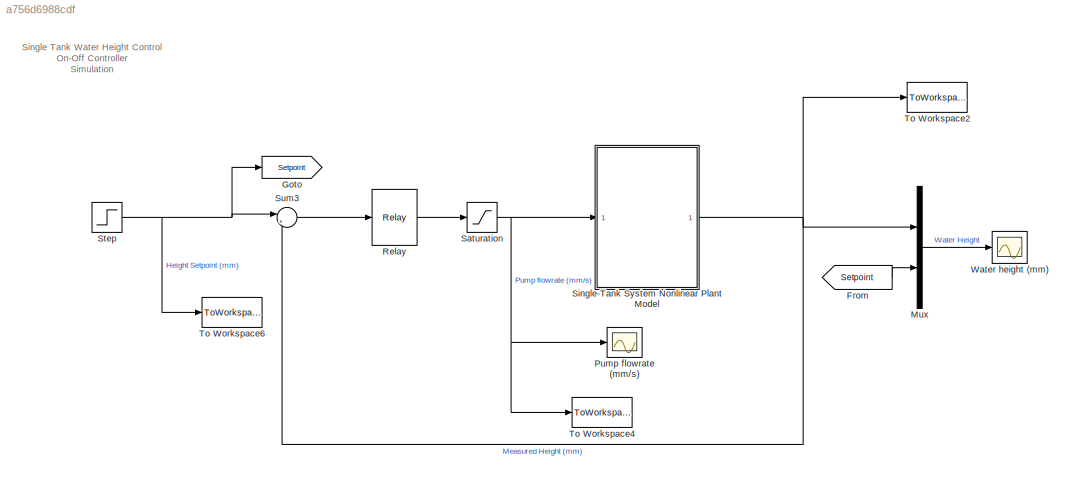
MODEL slx_a756d6988cdf
KIND model
CONFIG AbsTol = auto
CONFIG EnableMultiTasking = off
CONFIG FixedStep = 0.1
CONFIG InitFcn = clearvars;\nload('singletank_parameters.mat')
CONFIG MaxStep = auto
CONFIG MinStep = auto
CONFIG RelTol = 1e-3
CONFIG SampleTimeConstraint = Unconstrained
CONFIG SolverName = FixedStepAuto
CONFIG StartTime = 0.0
CONFIG StopFcn = plot_results
CONFIG StopTime = 40
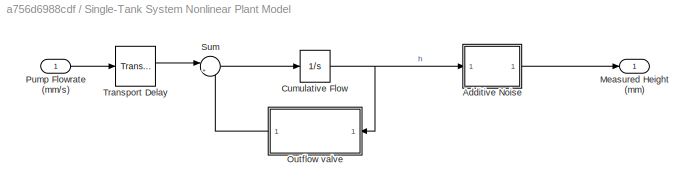
BLOCK [SubSystem]  Single-Tank System Nonlinear Plant Model
  Ports = [1, 1]
  RequestExecContextInheritance = off
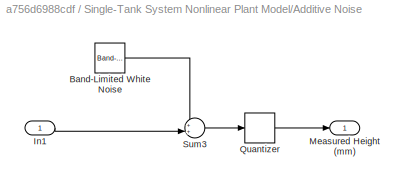
BLOCK [SubSystem]  Single-Tank System Nonlinear Plant Model/Additive Noise
  Ports = [1, 1]
  RequestExecContextInheritance = off
  ShowPortLabels = none
BLOCK [Reference]  Single-Tank System Nonlinear Plant Model/Additive Noise/Band-Limited White Noise  REF=simulink/Sources/Band-Limited
White Noise
  Ports = [0, 1]
  SourceBlock = simulink/Sources/Band-Limited\nWhite Noise
  SourceProductBaseCode = SL
  SourceType = Band-Limited White Noise.
BLOCK [Inport]  Single-Tank System Nonlinear Plant Model/Additive Noise/In1
BLOCK [Outport]  Single-Tank System Nonlinear Plant Model/Additive Noise/Measured Height (mm)
  VectorParamsAs1DForOutWhenUnconnected = off
BLOCK [Quantizer]  Single-Tank System Nonlinear Plant Model/Additive Noise/Quantizer
  QuantizationInterval = 0.2
BLOCK [Sum]  Single-Tank System Nonlinear Plant Model/Additive Noise/Sum3
  Inputs = ++|
  Ports = [2, 1]
  SaturateOnIntegerOverflow = on
BLOCK [Integrator]  Single-Tank System Nonlinear Plant Model/Cumulative Flow
  LimitOutput = on
  LowerSaturationLimit = 0
  Ports = [1, 1]
  UpperSaturationLimit = params_single.Hlimit
BLOCK [Outport]  Single-Tank System Nonlinear Plant Model/Measured Height (mm)
  VectorParamsAs1DForOutWhenUnconnected = off
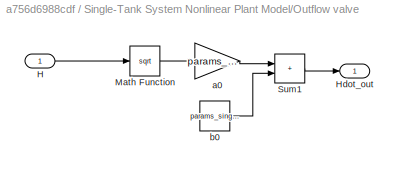
BLOCK [SubSystem]  Single-Tank System Nonlinear Plant Model/Outflow valve
  Ports = [1, 1]
  RequestExecContextInheritance = off
BLOCK [Inport]  Single-Tank System Nonlinear Plant Model/Outflow valve/H
BLOCK [Outport]  Single-Tank System Nonlinear Plant Model/Outflow valve/Hdot_out
  VectorParamsAs1DForOutWhenUnconnected = off
BLOCK [Math]  Single-Tank System Nonlinear Plant Model/Outflow valve/Math Function
  Operator = sqrt
  Ports = [1, 1]
  SignedPower = on
BLOCK [Sum]  Single-Tank System Nonlinear Plant Model/Outflow valve/Sum1
  IconShape = rectangular
  Ports = [2, 1]
  SaturateOnIntegerOverflow = on
BLOCK [Gain]  Single-Tank System Nonlinear Plant Model/Outflow valve/a0
  Gain = params_single.a0
  OutDataTypeStr = Inherit: Same as input
  ParamDataTypeStr = Inherit: Same as input
  SaturateOnIntegerOverflow = on
BLOCK [Constant]  Single-Tank System Nonlinear Plant Model/Outflow valve/b0
  Value = params_single.b0
BLOCK [Inport]  Single-Tank System Nonlinear Plant Model/Pump Flowrate (mm//s)
BLOCK [Sum]  Single-Tank System Nonlinear Plant Model/Sum
  Inputs = |+-
  Ports = [2, 1]
BLOCK [TransportDelay]  Single-Tank System Nonlinear Plant Model/Transport Delay
  Ports = [1, 1]
BLOCK [From] From
  GotoTag = Setpoint
BLOCK [Goto] Goto
  GotoTag = Setpoint
BLOCK [Mux] Mux
  DisplayOption = bar
  Inputs = 2
  Ports = [2, 1]
BLOCK [Scope] Pump flowrate (mm//s)
  Floating = off
  NumInputPorts = 1
  Ports = [1]
  ScopeSpecificationString = Simulink.scopes.TimeScopeBlockCfg('CurrentConfiguration', extmgr.ConfigurationSet(extmgr.Configuration('Core','General UI',true),extmgr.Configuration('Core','Source UI',true),extmgr.Configuration('Sources','WiredSimulink',true,'DataLoggingVariableName','ScopeData1','DataLoggingSaveFormat','StructureWithTime','DataLoggingDecimation','1','DataLoggingDecimateData',true),extmgr.Configuration('Visuals'...<+2100ch>
BLOCK [Relay] Relay
  OffSwitchValue = -3
  OnOutputValue = params_single.Qlimit
  OnSwitchValue = 3
BLOCK [Saturate] Saturation
  LinearizeAsGain = off
  LowerLimit = 0
  UpperLimit = params_single.Qlimit
BLOCK [Step] Step
  After = 150
  SampleTime = 0
  Time = 0
BLOCK [Sum] Sum3
  Inputs = |+-
  Ports = [2, 1]
BLOCK [ToWorkspace] To Workspace2
  FixptAsFi = on
  MaxDataPoints = inf
  Ports = [1]
  SampleTime = -1
  SaveFormat = Structure With Time
  VariableName = h_NL
BLOCK [ToWorkspace] To Workspace4
  FixptAsFi = on
  MaxDataPoints = inf
  Ports = [1]
  SampleTime = -1
  SaveFormat = Structure With Time
  VariableName = q_NL
BLOCK [ToWorkspace] To Workspace6
  FixptAsFi = on
  MaxDataPoints = inf
  Ports = [1]
  SampleTime = -1
  SaveFormat = Structure With Time
  VariableName = setpt
BLOCK [Scope] Water height (mm)
  Floating = off
  NumInputPorts = 1
  Ports = [1]
  ScopeSpecificationString = Simulink.scopes.TimeScopeBlockCfg('CurrentConfiguration', extmgr.ConfigurationSet(extmgr.Configuration('Core','General UI',true),extmgr.Configuration('Core','Source UI',true),extmgr.Configuration('Sources','WiredSimulink',true,'DataLoggingSaveFormat','StructureWithTime','DataLoggingDecimation','1','DataLoggingDecimateData',true),extmgr.Configuration('Visuals','Time Domain',true,'TimeAxisLabels','A...<+2314ch>
ANNOTATION (root): Single Tank Water Height Control On-Off Controller Simulation
LINE  Single-Tank System Nonlinear Plant Model/Additive Noise/Band-Limited White Noise:1 ->  Single-Tank System Nonlinear Plant Model/Additive Noise/Sum3:1
LINE  Single-Tank System Nonlinear Plant Model/Additive Noise/In1:1 ->  Single-Tank System Nonlinear Plant Model/Additive Noise/Sum3:2
LINE  Single-Tank System Nonlinear Plant Model/Additive Noise/Quantizer:1 ->  Single-Tank System Nonlinear Plant Model/Additive Noise/Measured Height (mm):1
LINE  Single-Tank System Nonlinear Plant Model/Additive Noise/Sum3:1 ->  Single-Tank System Nonlinear Plant Model/Additive Noise/Quantizer:1
LINE  Single-Tank System Nonlinear Plant Model/Additive Noise:1 ->  Single-Tank System Nonlinear Plant Model/Measured Height (mm):1
NET  Single-Tank System Nonlinear Plant Model/Cumulative Flow:1 ->  Single-Tank System Nonlinear Plant Model/Additive Noise:1,  Single-Tank System Nonlinear Plant Model/Outflow valve:1
LINE  Single-Tank System Nonlinear Plant Model/Outflow valve/H:1 ->  Single-Tank System Nonlinear Plant Model/Outflow valve/Math Function:1
LINE  Single-Tank System Nonlinear Plant Model/Outflow valve/Math Function:1 ->  Single-Tank System Nonlinear Plant Model/Outflow valve/a0:1
LINE  Single-Tank System Nonlinear Plant Model/Outflow valve/Sum1:1 ->  Single-Tank System Nonlinear Plant Model/Outflow valve/Hdot_out:1
LINE  Single-Tank System Nonlinear Plant Model/Outflow valve/a0:1 ->  Single-Tank System Nonlinear Plant Model/Outflow valve/Sum1:1
LINE  Single-Tank System Nonlinear Plant Model/Outflow valve/b0:1 ->  Single-Tank System Nonlinear Plant Model/Outflow valve/Sum1:2
LINE  Single-Tank System Nonlinear Plant Model/Outflow valve:1 ->  Single-Tank System Nonlinear Plant Model/Sum:2
LINE  Single-Tank System Nonlinear Plant Model/Pump Flowrate (mm//s):1 ->  Single-Tank System Nonlinear Plant Model/Transport Delay:1
LINE  Single-Tank System Nonlinear Plant Model/Sum:1 ->  Single-Tank System Nonlinear Plant Model/Cumulative Flow:1
LINE  Single-Tank System Nonlinear Plant Model/Transport Delay:1 ->  Single-Tank System Nonlinear Plant Model/Sum:1
NET  Single-Tank System Nonlinear Plant Model:1 -> Mux:1, Sum3:2, To Workspace2:1
LINE From:1 -> Mux:2
LINE Mux:1 -> Water height (mm):1
LINE Relay:1 -> Saturation:1
NET Saturation:1 ->  Single-Tank System Nonlinear Plant Model:1, Pump flowrate (mm//s):1, To Workspace4:1
NET Step:1 -> Goto:1, Sum3:1, To Workspace6:1
LINE Sum3:1 -> Relay:1
note: NET lines group one-source signal fan-out (src -> all destinations, sorted); 1:1 wires keep LINE
